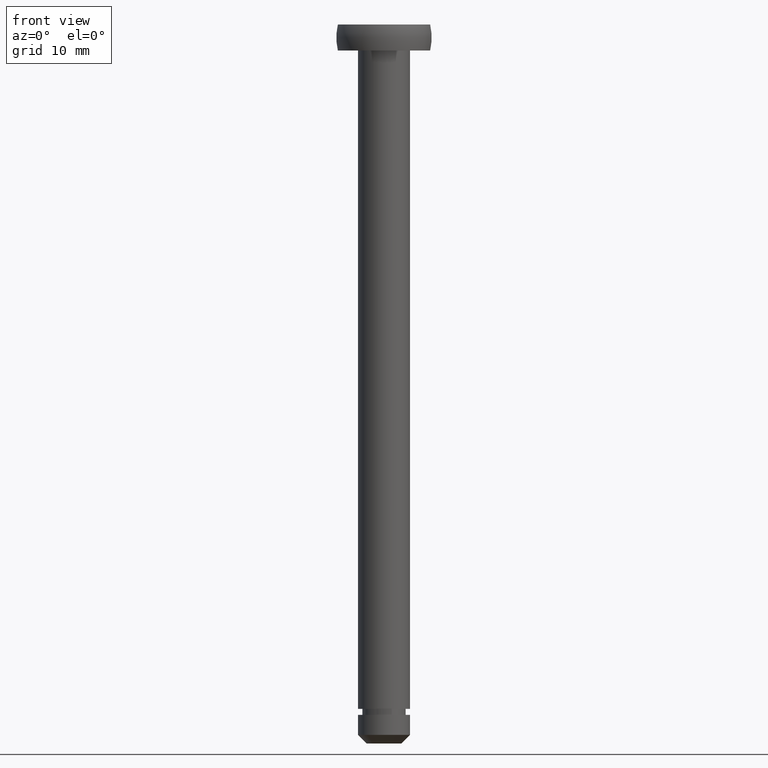
[diagram: clean part render]
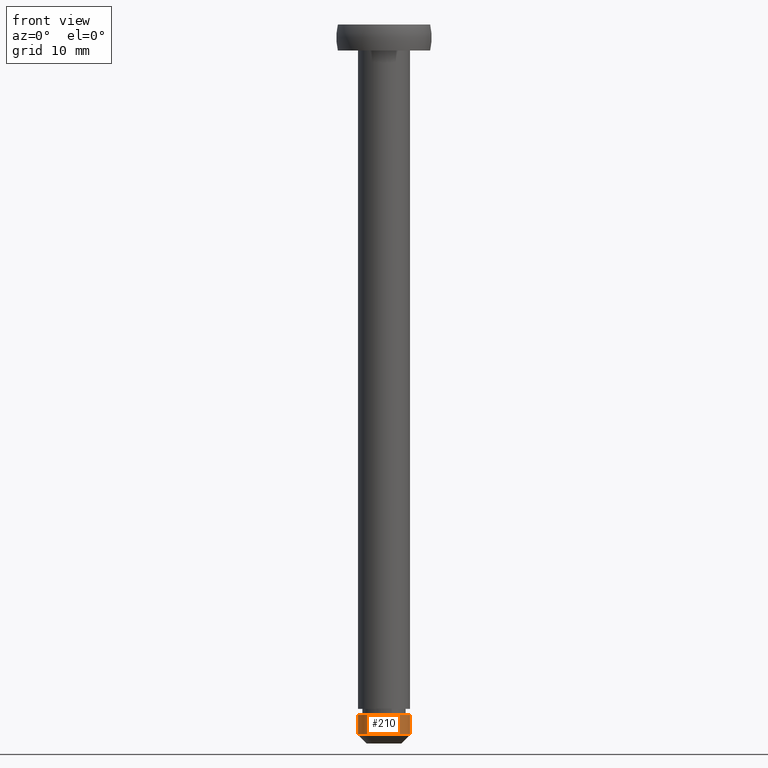
[diagram: same view with one face highlighted and labeled with its STEP entity id]
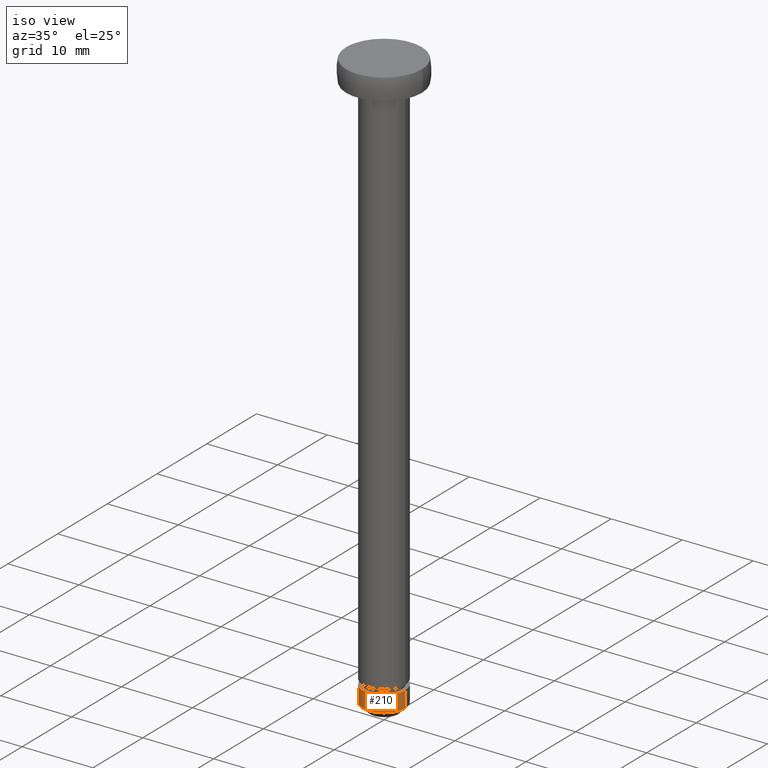
[diagram: same view with one face highlighted and labeled with its STEP entity id]
A machine part, front view. The second image highlights one B-rep face of the part: STEP entity #210.
A second angle (iso view) of the same face is appended — the face is thin or edge-on in the first view.
In plain terms, the highlighted cylindrical surface (edge-blend (fillet) strip) has radius 3 mm, axis along (0, 0, -1).
Its self-contained STEP definition (entity closure, byte-faithful):
#5 = AXIS2_PLACEMENT_3D ( 'NONE', #423, #317, #186 ) ;
#24 = DIRECTION ( 'NONE',  ( 0.0000000000000000000, 0.0000000000000000000, -1.000000000000000000 ) ) ;
#40 = LINE ( 'NONE', #215, #304 ) ;
#57 = VERTEX_POINT ( 'NONE', #216 ) ;
#95 = AXIS2_PLACEMENT_3D ( 'NONE', #418, #24, #247 ) ;
#98 = CARTESIAN_POINT ( 'NONE',  ( -3.000000000000000000, 0.0000000000000000000, 3.299999999999997200 ) ) ;
#103 = FACE_OUTER_BOUND ( 'NONE', #110, .T. ) ;
#110 = EDGE_LOOP ( 'NONE', ( #267, #401, #187, #243 ) ) ;
#111 = DIRECTION ( 'NONE',  ( 0.0000000000000000000, 0.0000000000000000000, -1.000000000000000000 ) ) ;
#117 = DIRECTION ( 'NONE',  ( 0.0000000000000000000, 0.0000000000000000000, -1.000000000000000000 ) ) ;
#136 = EDGE_CURVE ( 'NONE', #392, #439, #176, .T. ) ;
#160 = EDGE_CURVE ( 'NONE', #364, #392, #214, .T. ) ;
#176 = LINE ( 'NONE', #427, #338 ) ;
#181 = DIRECTION ( 'NONE',  ( -1.000000000000000000, 0.0000000000000000000, 0.0000000000000000000 ) ) ;
#186 = DIRECTION ( 'NONE',  ( -1.000000000000000000, 0.0000000000000000000, 0.0000000000000000000 ) ) ;
#187 = ORIENTED_EDGE ( 'NONE', *, *, #136, .T. ) ;
#209 = CARTESIAN_POINT ( 'NONE',  ( -2.999999999999995600, 3.673940397442054400E-016, 1.000000000000000900 ) ) ;
#210 = ADVANCED_FACE ( 'NONE', ( #103 ), #353, .T. ) ;
#214 = CIRCLE ( 'NONE', #359, 3.000000000000000000 ) ;
#215 = CARTESIAN_POINT ( 'NONE',  ( 2.999999999999997800, 3.673940397442057400E-016, 83.00000000000000000 ) ) ;
#216 = CARTESIAN_POINT ( 'NONE',  ( 2.999999999999995600, 0.0000000000000000000, 1.000000000000000900 ) ) ;
#227 = DIRECTION ( 'NONE',  ( 0.0000000000000000000, 0.0000000000000000000, -1.000000000000000000 ) ) ;
#229 = CARTESIAN_POINT ( 'NONE',  ( 0.0000000000000000000, 0.0000000000000000000, 3.299999999999997200 ) ) ;
#240 = CARTESIAN_POINT ( 'NONE',  ( 3.000000000000000000, 3.673940397442059900E-016, 3.299999999999997200 ) ) ;
#243 = ORIENTED_EDGE ( 'NONE', *, *, #371, .F. ) ;
#247 = DIRECTION ( 'NONE',  ( -1.000000000000000000, 0.0000000000000000000, 0.0000000000000000000 ) ) ;
#267 = ORIENTED_EDGE ( 'NONE', *, *, #335, .F. ) ;
#304 = VECTOR ( 'NONE', #111, 1000.000000000000000 ) ;
#317 = DIRECTION ( 'NONE',  ( 0.0000000000000000000, 0.0000000000000000000, -1.000000000000000000 ) ) ;
#335 = EDGE_CURVE ( 'NONE', #364, #57, #40, .T. ) ;
#338 = VECTOR ( 'NONE', #227, 1000.000000000000000 ) ;
#352 = CIRCLE ( 'NONE', #5, 2.999999999999995600 ) ;
#353 = CYLINDRICAL_SURFACE ( 'NONE', #95, 2.999999999999997800 ) ;
#359 = AXIS2_PLACEMENT_3D ( 'NONE', #229, #117, #181 ) ;
#364 = VERTEX_POINT ( 'NONE', #240 ) ;
#371 = EDGE_CURVE ( 'NONE', #57, #439, #352, .T. ) ;
#392 = VERTEX_POINT ( 'NONE', #98 ) ;
#401 = ORIENTED_EDGE ( 'NONE', *, *, #160, .T. ) ;
#418 = CARTESIAN_POINT ( 'NONE',  ( 0.0000000000000000000, 0.0000000000000000000, 83.00000000000000000 ) ) ;
#423 = CARTESIAN_POINT ( 'NONE',  ( 0.0000000000000000000, 0.0000000000000000000, 1.000000000000000900 ) ) ;
#427 = CARTESIAN_POINT ( 'NONE',  ( -2.999999999999997800, 0.0000000000000000000, 83.00000000000000000 ) ) ;
#439 = VERTEX_POINT ( 'NONE', #209 ) ;